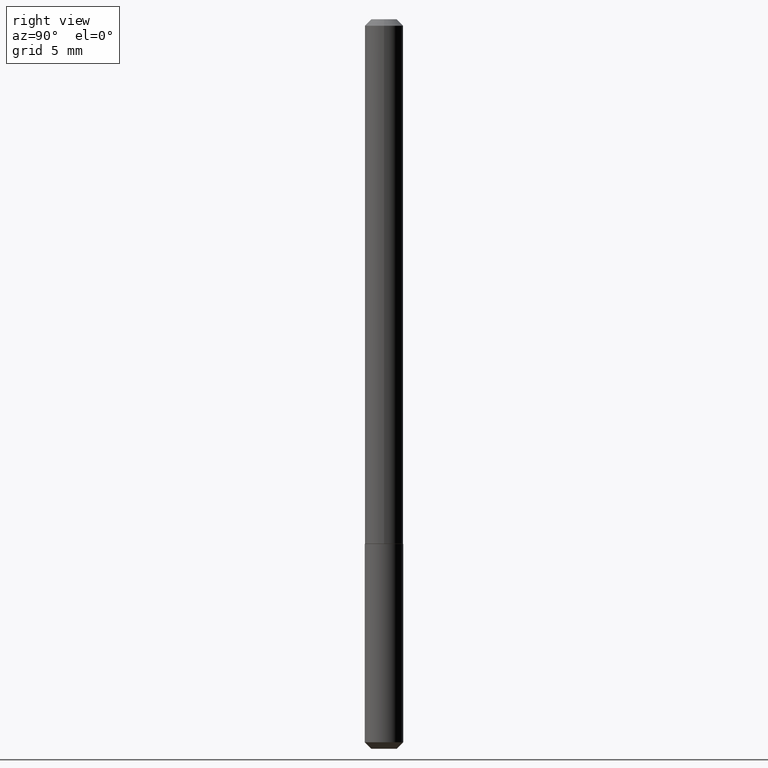
[diagram: clean part render]
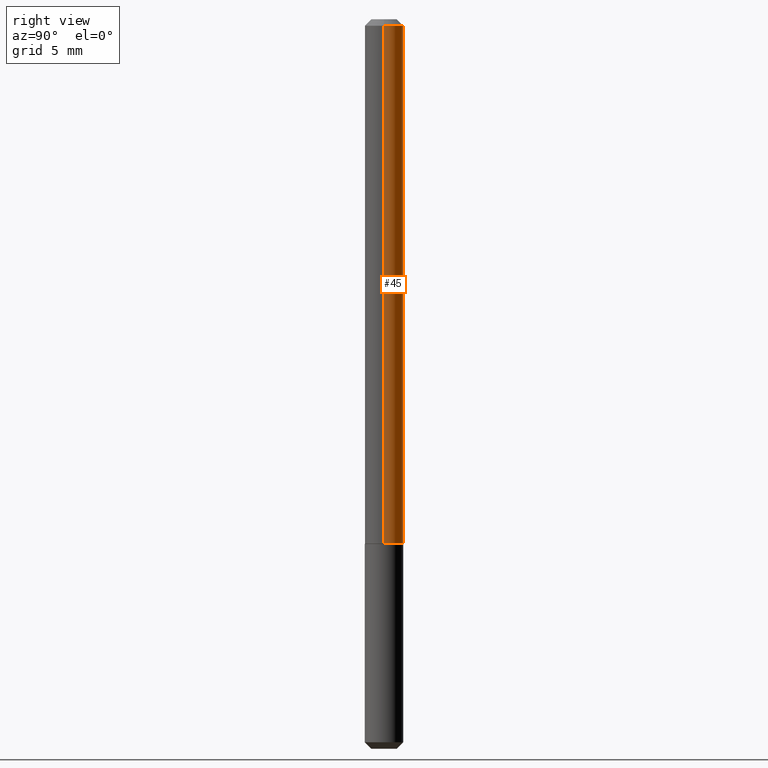
[diagram: same view with one face highlighted and labeled with its STEP entity id]
A machine part, right view. The second image highlights one B-rep face of the part: STEP entity #45.
In plain terms, the highlighted cylindrical surface (edge-blend (fillet) strip) has radius 1.4999 mm, axis along (-0, 0, 1).
Its self-contained STEP definition (entity closure, byte-faithful):
#1 = ORIENTED_EDGE ( 'NONE', *, *, #39, .F. ) ;
#6 = CARTESIAN_POINT ( 'NONE',  ( 0.05905000000000018567, -6.046547382608559574E-15, -1.613700000000000134 ) ) ;
#8 = CYLINDRICAL_SURFACE ( 'NONE', #240, 0.05905000000000009547 ) ;
#26 = DIRECTION ( 'NONE',  ( -2.445468806185136597E-29, 3.491481338843145583E-15, 1.000000000000000000 ) ) ;
#28 = EDGE_CURVE ( 'NONE', #315, #79, #317, .T. ) ;
#33 = DIRECTION ( 'NONE',  ( -2.445468806185136877E-29, 3.491481338843145188E-15, 1.000000000000000000 ) ) ;
#34 = VERTEX_POINT ( 'NONE', #409 ) ;
#39 = EDGE_CURVE ( 'NONE', #315, #289, #283, .T. ) ;
#42 = VECTOR ( 'NONE', #33, 39.37007874015748143 ) ;
#45 = ADVANCED_FACE ( 'NONE', ( #70 ), #8, .T. ) ;
#58 = CIRCLE ( 'NONE', #372, 0.05904999999999999832 ) ;
#65 = CARTESIAN_POINT ( 'NONE',  ( 3.946253012540955150E-29, -5.634203436491184654E-15, -1.613700000000000134 ) ) ;
#70 = FACE_OUTER_BOUND ( 'NONE', #235, .T. ) ;
#79 = VERTEX_POINT ( 'NONE', #261 ) ;
#108 = DIRECTION ( 'NONE',  ( -2.445468806185136597E-29, 3.491481338843145583E-15, 1.000000000000000000 ) ) ;
#125 = DIRECTION ( 'NONE',  ( -2.445468806185136877E-29, 3.491481338843145188E-15, 1.000000000000000000 ) ) ;
#165 = DIRECTION ( 'NONE',  ( 1.000000000000000000, -6.982962677686266711E-15, 0.000000000000000000 ) ) ;
#171 = DIRECTION ( 'NONE',  ( 1.000000000000000000, -6.982962677686266711E-15, 4.876176775795935232E-29 ) ) ;
#187 = AXIS2_PLACEMENT_3D ( 'NONE', #65, #26, #269 ) ;
#200 = VECTOR ( 'NONE', #125, 39.37007874015748143 ) ;
#207 = EDGE_CURVE ( 'NONE', #289, #34, #58, .T. ) ;
#235 = EDGE_LOOP ( 'NONE', ( #292, #411, #369, #1 ) ) ;
#240 = AXIS2_PLACEMENT_3D ( 'NONE', #253, #270, #171 ) ;
#253 = CARTESIAN_POINT ( 'NONE',  ( 0.000000000000000000, 0.000000000000000000, 0.000000000000000000 ) ) ;
#254 = CARTESIAN_POINT ( 'NONE',  ( 0.05905000000000009547, -4.123439461173747229E-16, 2.879382386107504424E-30 ) ) ;
#261 = CARTESIAN_POINT ( 'NONE',  ( -0.05905000000000018567, -5.214627951024844373E-15, -1.613700000000000134 ) ) ;
#269 = DIRECTION ( 'NONE',  ( 1.000000000000000000, -6.982962677686266711E-15, 0.000000000000000000 ) ) ;
#270 = DIRECTION ( 'NONE',  ( -2.445468806185136597E-29, 3.491481338843145583E-15, 1.000000000000000000 ) ) ;
#283 = LINE ( 'NONE', #254, #200 ) ;
#289 = VERTEX_POINT ( 'NONE', #323 ) ;
#292 = ORIENTED_EDGE ( 'NONE', *, *, #28, .T. ) ;
#310 = LINE ( 'NONE', #314, #42 ) ;
#314 = CARTESIAN_POINT ( 'NONE',  ( -0.05905000000000009547, 4.195754854663398381E-16, -2.904631170795526446E-30 ) ) ;
#315 = VERTEX_POINT ( 'NONE', #6 ) ;
#317 = CIRCLE ( 'NONE', #187, 0.05905000000000018567 ) ;
#323 = CARTESIAN_POINT ( 'NONE',  ( 0.05904999999999999832, -4.821735728942374295E-16, -0.02000000000000013572 ) ) ;
#336 = CARTESIAN_POINT ( 'NONE',  ( 4.890937612370306439E-31, -6.982962677686338448E-17, -0.02000000000000013572 ) ) ;
#369 = ORIENTED_EDGE ( 'NONE', *, *, #207, .F. ) ;
#372 = AXIS2_PLACEMENT_3D ( 'NONE', #336, #108, #165 ) ;
#395 = EDGE_CURVE ( 'NONE', #79, #34, #310, .T. ) ;
#409 = CARTESIAN_POINT ( 'NONE',  ( -0.05904999999999999832, -2.432441046167682117E-15, -0.02000000000000013572 ) ) ;
#411 = ORIENTED_EDGE ( 'NONE', *, *, #395, .T. ) ;